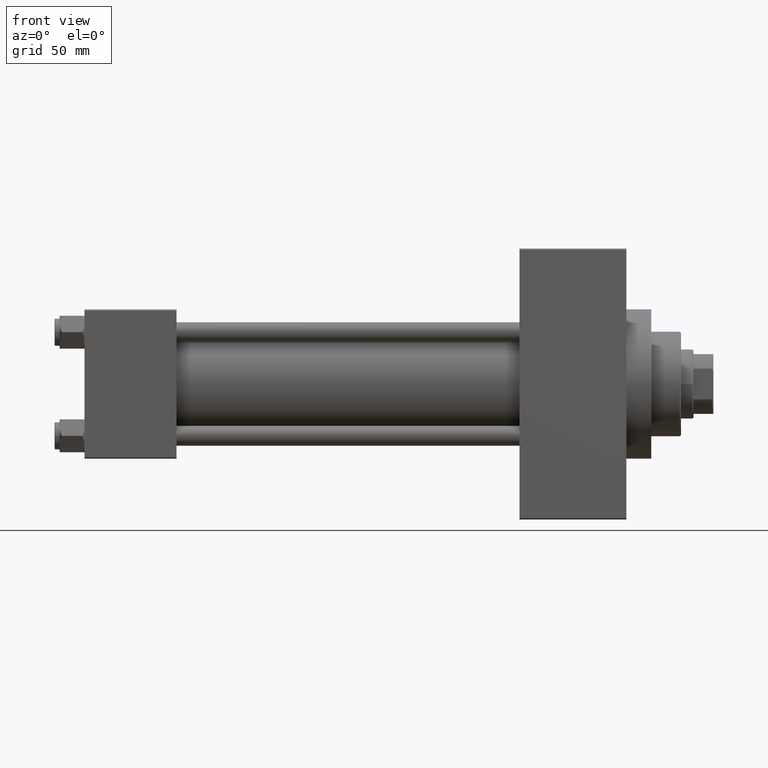
[diagram: clean part render]
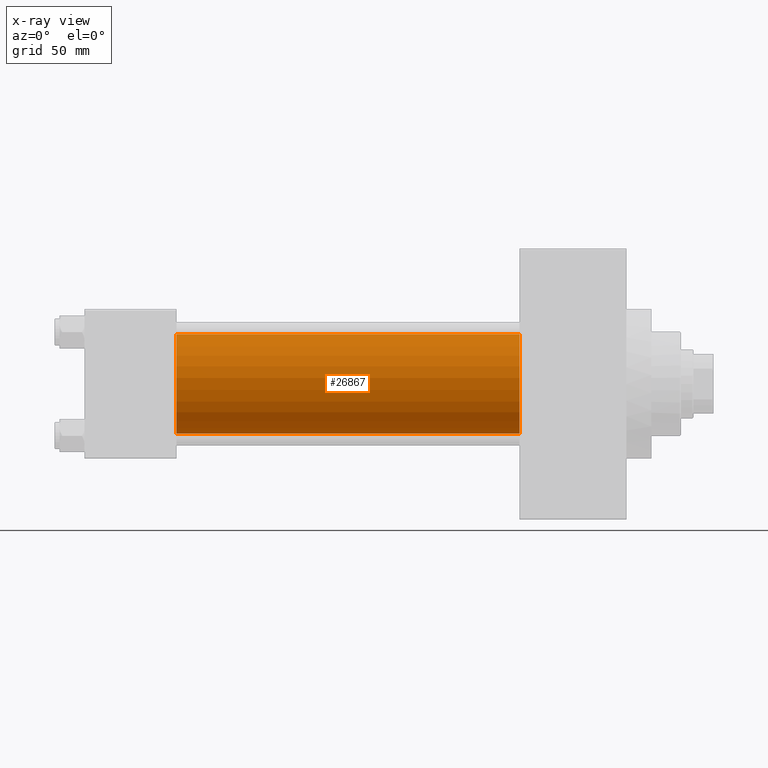
[diagram: x-ray — body ghosted, one internal face saturated and labeled with its STEP entity id]
A machine part, front view, then the same camera in x-ray: the body is ghosted and one INTERNAL B-rep face — a face not visible from any outside direction — is saturated and labeled: STEP entity #26867.
In plain terms, the highlighted cylindrical surface (partial cylindrical patch) has radius 20 mm, axis along (-1, -0, -0).
Its self-contained STEP definition (entity closure, byte-faithful):
#1275 = ORIENTED_EDGE ( 'NONE', *, *, #36931, .F. ) ;
#1861 = DIRECTION ( 'NONE',  ( -1.000000000000000000, -0.000000000000000000, -0.000000000000000000 ) ) ;
#1976 = EDGE_CURVE ( 'NONE', #48241, #20792, #17601, .T. ) ;
#3308 = FACE_OUTER_BOUND ( 'NONE', #18573, .T. ) ;
#3712 = AXIS2_PLACEMENT_3D ( 'NONE', #47748, #28207, #25178 ) ;
#5034 = EDGE_CURVE ( 'NONE', #45339, #14089, #9384, .T. ) ;
#9384 = LINE ( 'NONE', #47745, #42200 ) ;
#13320 = CIRCLE ( 'NONE', #3712, 20.00000000000000000 ) ;
#14089 = VERTEX_POINT ( 'NONE', #34693 ) ;
#14848 = VECTOR ( 'NONE', #32414, 1000.000000000000000 ) ;
#15121 = DIRECTION ( 'NONE',  ( -1.000000000000000000, -0.000000000000000000, -0.000000000000000000 ) ) ;
#17601 = LINE ( 'NONE', #43942, #14848 ) ;
#18377 = ORIENTED_EDGE ( 'NONE', *, *, #1976, .F. ) ;
#18573 = EDGE_LOOP ( 'NONE', ( #23862, #35355, #1275, #18377 ) ) ;
#19702 = CARTESIAN_POINT ( 'NONE',  ( 175.0000000000000284, -1.527916156705042519E-16, -20.00000000000000000 ) ) ;
#20792 = VERTEX_POINT ( 'NONE', #29402 ) ;
#22315 = EDGE_CURVE ( 'NONE', #48241, #45339, #22467, .T. ) ;
#22467 = CIRCLE ( 'NONE', #27291, 20.00000000000000000 ) ;
#23862 = ORIENTED_EDGE ( 'NONE', *, *, #22315, .T. ) ;
#25178 = DIRECTION ( 'NONE',  ( 0.000000000000000000, 0.000000000000000000, -1.000000000000000000 ) ) ;
#26075 = CARTESIAN_POINT ( 'NONE',  ( 175.0000000000000284, -2.602085213965210642E-15, 0.000000000000000000 ) ) ;
#26867 = ADVANCED_FACE ( 'NONE', ( #3308 ), #30156, .F. ) ;
#27291 = AXIS2_PLACEMENT_3D ( 'NONE', #26075, #37359, #32443 ) ;
#28207 = DIRECTION ( 'NONE',  ( 1.000000000000000000, 0.000000000000000000, 0.000000000000000000 ) ) ;
#29402 = CARTESIAN_POINT ( 'NONE',  ( 37.00000000000000000, -2.602085213965210642E-15, 20.00000000000000000 ) ) ;
#30156 = CYLINDRICAL_SURFACE ( 'NONE', #45854, 20.00000000000000000 ) ;
#32414 = DIRECTION ( 'NONE',  ( -1.000000000000000000, -0.000000000000000000, -0.000000000000000000 ) ) ;
#32443 = DIRECTION ( 'NONE',  ( 0.000000000000000000, 0.000000000000000000, -1.000000000000000000 ) ) ;
#34693 = CARTESIAN_POINT ( 'NONE',  ( 37.00000000000000000, -1.527916156705042519E-16, -20.00000000000000000 ) ) ;
#35355 = ORIENTED_EDGE ( 'NONE', *, *, #5034, .T. ) ;
#36931 = EDGE_CURVE ( 'NONE', #20792, #14089, #13320, .T. ) ;
#37359 = DIRECTION ( 'NONE',  ( 1.000000000000000000, 0.000000000000000000, 0.000000000000000000 ) ) ;
#40478 = CARTESIAN_POINT ( 'NONE',  ( 175.0000000000000284, -2.602085213965210642E-15, 20.00000000000000000 ) ) ;
#41692 = DIRECTION ( 'NONE',  ( 0.000000000000000000, 0.000000000000000000, 1.000000000000000000 ) ) ;
#42200 = VECTOR ( 'NONE', #1861, 1000.000000000000000 ) ;
#43942 = CARTESIAN_POINT ( 'NONE',  ( 175.0000000000000284, -2.602085213965210642E-15, 20.00000000000000000 ) ) ;
#45339 = VERTEX_POINT ( 'NONE', #19702 ) ;
#45449 = CARTESIAN_POINT ( 'NONE',  ( 175.0000000000000284, -2.602085213965210642E-15, 0.000000000000000000 ) ) ;
#45854 = AXIS2_PLACEMENT_3D ( 'NONE', #45449, #15121, #41692 ) ;
#47745 = CARTESIAN_POINT ( 'NONE',  ( 175.0000000000000284, -1.527916156705042519E-16, -20.00000000000000000 ) ) ;
#47748 = CARTESIAN_POINT ( 'NONE',  ( 37.00000000000000000, -2.602085213965210642E-15, 0.000000000000000000 ) ) ;
#48241 = VERTEX_POINT ( 'NONE', #40478 ) ;